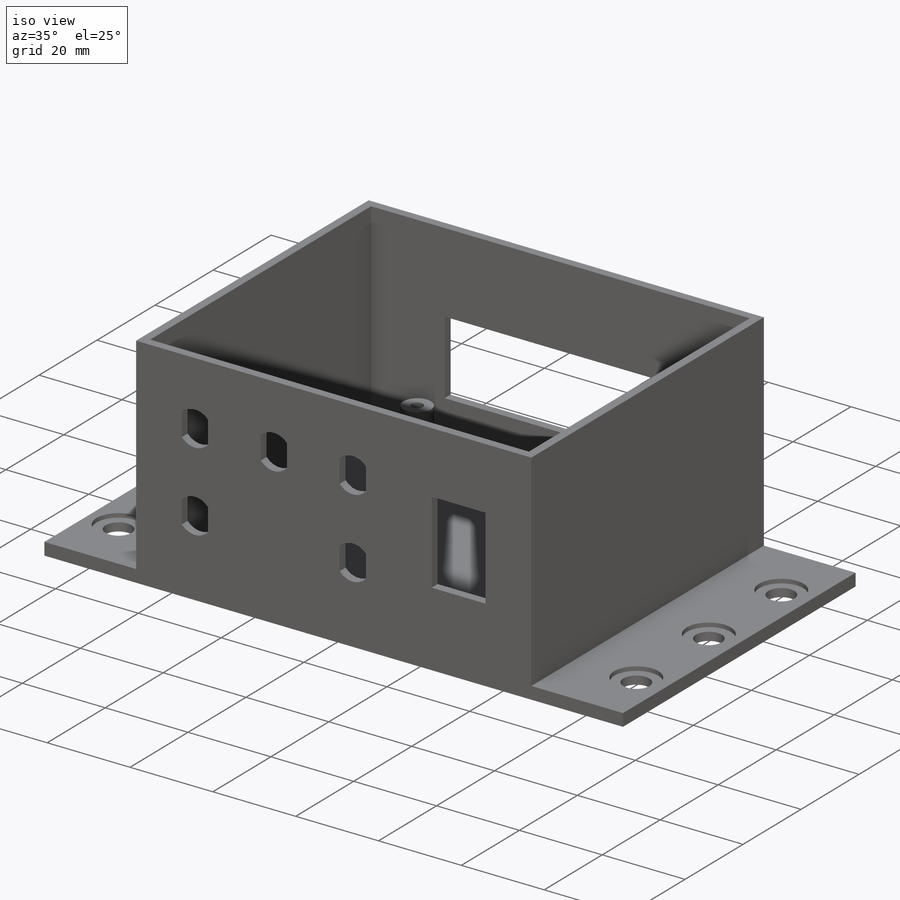
[diagram: iso view]
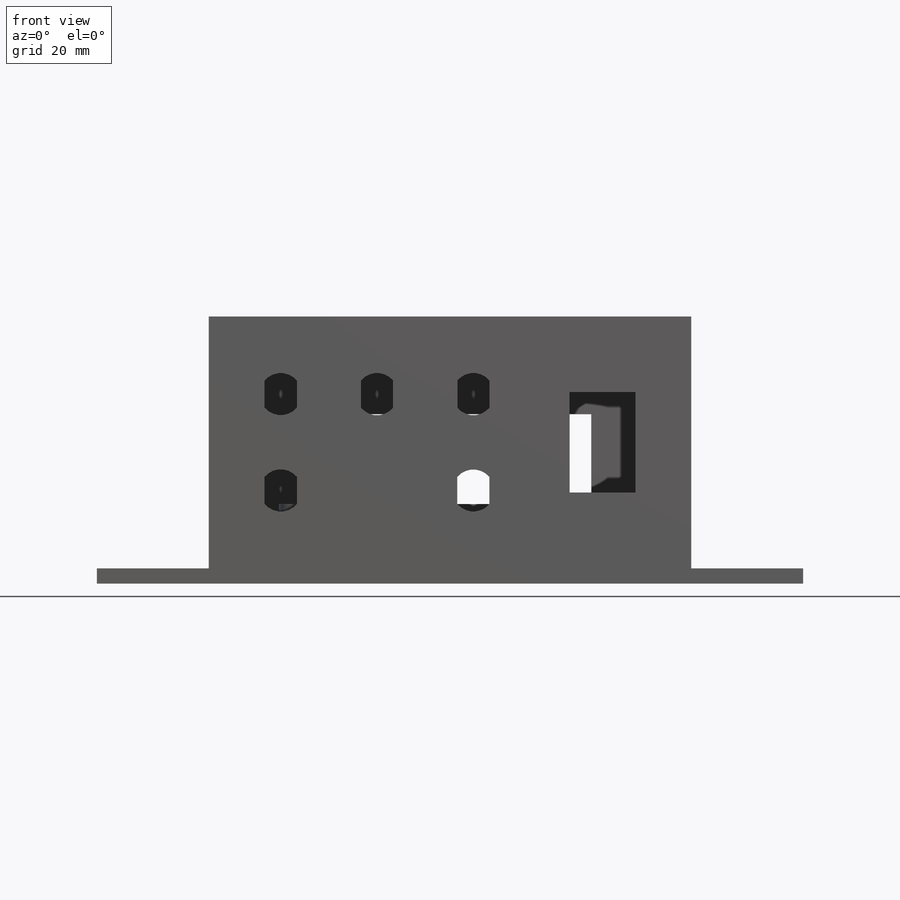
[diagram: front view]
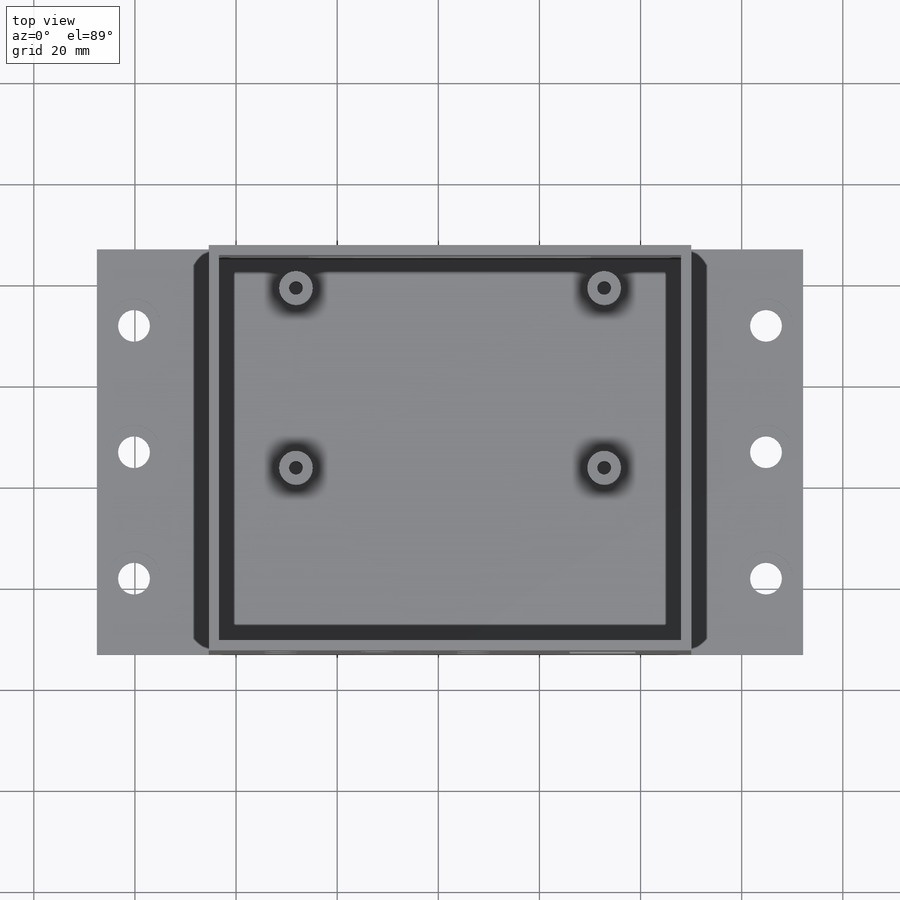
[diagram: top view]
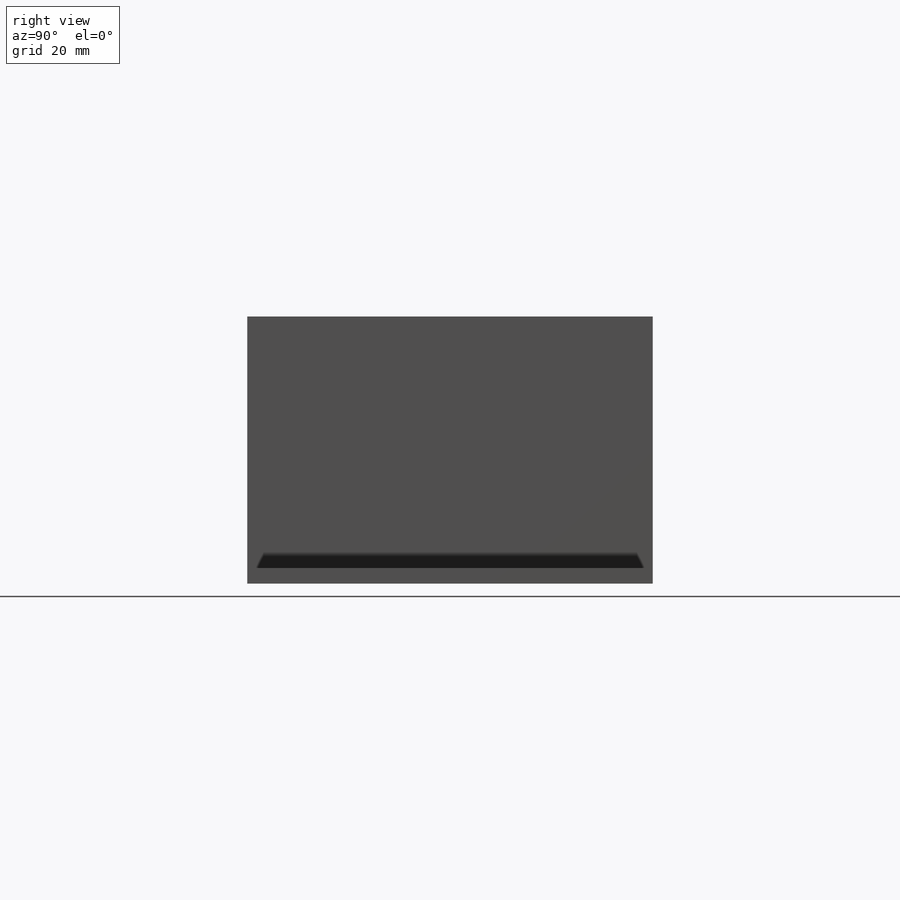
[diagram: right view]
SOLIDWORKS PART (.sldprt)
format: sldprt  version: not decoded by parser v0  size: 332,288 bytes
history: native  units: mm
features: sketch x6, extrude x3, cut_extrude x3, material x1 (+13 scaffold rows collapsed)
feature tree (26):
  scaffold x13  (default folders/planes/origin — collapsed)
  material  "Material <not specified>"
  sketch  "Sketch1"  dims[D1=66.04mm D2=40.64mm D3=91.44mm D4=76.2mm D5=19.05mm D6=2.0mm D7=2.0mm D8=2.0mm D9=2.0mm]
  extrude  "Boss-Extrude1"  Depth=52.832mm
  sketch  "Sketch2"  dims[D1=~2.43742mm D2=50.0mm D3=125.0mm D4=88.9mm D5=139.7mm]
  extrude  "Boss-Extrude2"  Depth=3mm
  sketch  "Sketch3"  dims[D1=10.7mm]
  cut_extrude  "Cut-Extrude1"  Depth=1mm
  sketch  "Sketch4"  dims[D3=6.6548mm D4=2.7178mm D1=60.96mm D2=35.56mm D5=2.54mm]
  extrude  "Boss-Extrude3"  Depth=12.7mm
  sketch  "Sketch5"  dims[D1=17.78mm D2=55.88mm D3=12.7mm]
  cut_extrude  "Cut-Extrude2"  [1 undecoded]
  sketch  "Sketch6"  dims[c1.D2=8.3312mm c1.D1=6.35mm c1.D3=~15.404969mm c2.D2=8.3312mm c2.D3=19.05mm c2.D4=19.05mm c2.D5=19.05mm c2.D6=13.0mm c2.D7=19.8mm c2.D8=19.05mm]
  cut_extrude  "Cut-Extrude3"  [1 undecoded]
decode coverage: 10 of 12 modeling features carry decoded parameters
note: ~ marks probable driven/reference dimensions
note: 2 parameter values undecoded
note: suppression state not decoded; provenance and decode notes live in map.json
